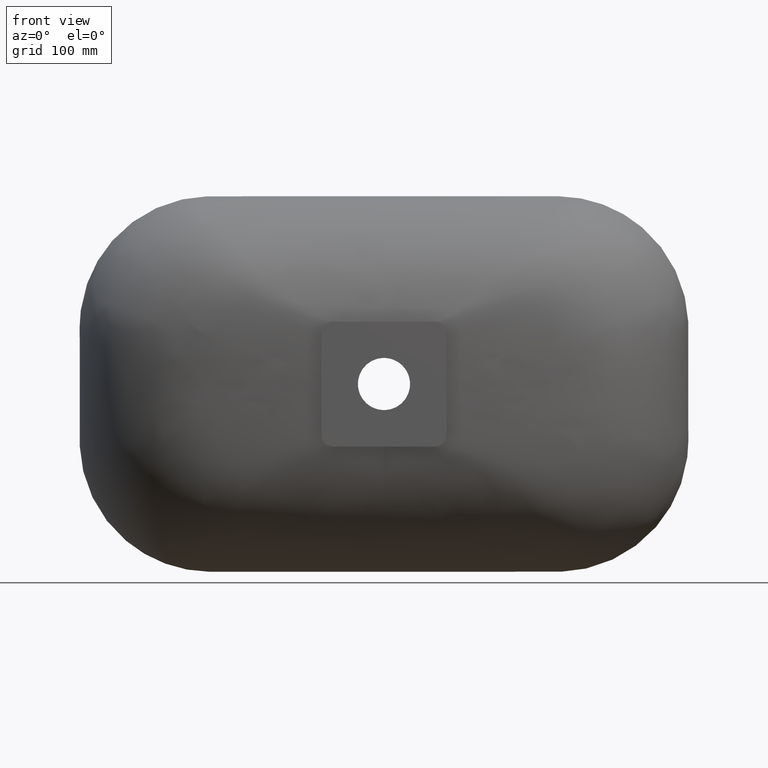
[diagram: clean part render]
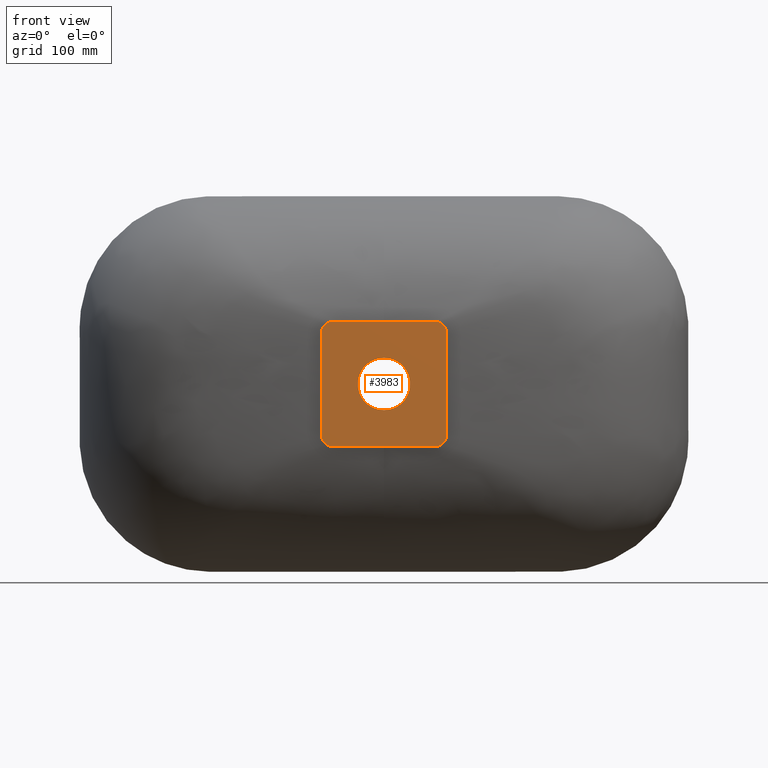
[diagram: same view with one face highlighted and labeled with its STEP entity id]
A machine part, front view. The second image highlights one B-rep face of the part: STEP entity #3983.
In plain terms, the highlighted planar face has unit normal (0, -1, 0).
Its self-contained STEP definition (entity closure, byte-faithful):
#71 = CARTESIAN_POINT ( 'NONE',  ( 3.727478630758845800E-012, -135.0001000000000000, 1.183025444455510400E-013 ) ) ;
#73 = EDGE_CURVE ( 'NONE', #4632, #2507, #5611, .T. ) ;
#74 = VERTEX_POINT ( 'NONE', #4558 ) ;
#190 = AXIS2_PLACEMENT_3D ( 'NONE', #3340, #8127, #4028 ) ;
#477 = VERTEX_POINT ( 'NONE', #2548 ) ;
#761 = DIRECTION ( 'NONE',  ( 1.000000000000000000, 2.896233977283470300E-014, 0.0000000000000000000 ) ) ;
#854 = CIRCLE ( 'NONE', #3876, 9.999999999999994700 ) ;
#891 = DIRECTION ( 'NONE',  ( -1.000000000000000000, -2.868076146948322700E-014, -1.541976423090496100E-016 ) ) ;
#922 = CARTESIAN_POINT ( 'NONE',  ( -54.99999999999998600, -135.0001000000016200, -45.00000000000001400 ) ) ;
#1128 = AXIS2_PLACEMENT_3D ( 'NONE', #2405, #7193, #3100 ) ;
#1167 = EDGE_CURVE ( 'NONE', #4435, #477, #2286, .T. ) ;
#1303 = ORIENTED_EDGE ( 'NONE', *, *, #4782, .T. ) ;
#1653 = ORIENTED_EDGE ( 'NONE', *, *, #5072, .T. ) ;
#1676 = VECTOR ( 'NONE', #4327, 1000.000000000000000 ) ;
#1738 = VERTEX_POINT ( 'NONE', #1981 ) ;
#1968 = EDGE_LOOP ( 'NONE', ( #5329, #3336, #2590, #1303, #2109, #1653, #4544, #4515 ) ) ;
#1981 = CARTESIAN_POINT ( 'NONE',  ( 44.99999999999997900, -135.0000999999986700, 54.99999999999997200 ) ) ;
#2067 = CARTESIAN_POINT ( 'NONE',  ( 3.727478630758845800E-012, -135.0001000000000000, 1.183025444455510400E-013 ) ) ;
#2109 = ORIENTED_EDGE ( 'NONE', *, *, #8791, .T. ) ;
#2125 = CARTESIAN_POINT ( 'NONE',  ( 2.816687638339104700E-015, -135.0000999999999700, 22.99999999999651800 ) ) ;
#2176 = DIRECTION ( 'NONE',  ( 2.867289048822921000E-014, -1.000000000000000000, 9.100188726435675100E-016 ) ) ;
#2192 = CARTESIAN_POINT ( 'NONE',  ( 44.99999999999999300, -135.0000999999987500, -54.99999999999997200 ) ) ;
#2243 = CIRCLE ( 'NONE', #1128, 9.999999999999980500 ) ;
#2286 = LINE ( 'NONE', #5944, #3041 ) ;
#2405 = CARTESIAN_POINT ( 'NONE',  ( -45.00000000000000000, -135.0001000000012500, 45.00000000000000000 ) ) ;
#2497 = AXIS2_PLACEMENT_3D ( 'NONE', #71, #4863, #761 ) ;
#2507 = VERTEX_POINT ( 'NONE', #2125 ) ;
#2548 = CARTESIAN_POINT ( 'NONE',  ( 54.99999999999997900, -135.0000999999984100, 45.00000000000000000 ) ) ;
#2590 = ORIENTED_EDGE ( 'NONE', *, *, #7411, .T. ) ;
#2629 = VECTOR ( 'NONE', #891, 1000.000000000000000 ) ;
#2651 = PLANE ( 'NONE',  #190 ) ;
#2770 = CARTESIAN_POINT ( 'NONE',  ( 3.202775275197307900E-025, -135.0001000000000300, -22.99999999999628400 ) ) ;
#2941 = AXIS2_PLACEMENT_3D ( 'NONE', #7982, #3883, #8674 ) ;
#3041 = VECTOR ( 'NONE', #5999, 1000.000000000000000 ) ;
#3100 = DIRECTION ( 'NONE',  ( -1.000000000000000000, -2.775557561562896700E-014, 0.0000000000000000000 ) ) ;
#3336 = ORIENTED_EDGE ( 'NONE', *, *, #1167, .T. ) ;
#3340 = CARTESIAN_POINT ( 'NONE',  ( 44.99999999999999300, -135.0000999999987500, -45.00000000000000000 ) ) ;
#3445 = DIRECTION ( 'NONE',  ( 1.000000000000000000, 2.896233977283470300E-014, 0.0000000000000000000 ) ) ;
#3550 = CARTESIAN_POINT ( 'NONE',  ( -45.00000000000000000, -135.0001000000013400, -44.99999999999999300 ) ) ;
#3639 = CARTESIAN_POINT ( 'NONE',  ( 44.99999999999999300, -135.0000999999987500, -54.99999999999997200 ) ) ;
#3876 = AXIS2_PLACEMENT_3D ( 'NONE', #3550, #8342, #4240 ) ;
#3880 = ORIENTED_EDGE ( 'NONE', *, *, #73, .F. ) ;
#3883 = DIRECTION ( 'NONE',  ( 2.867289048822921000E-014, -1.000000000000000000, 9.100188726435675100E-016 ) ) ;
#3983 = ADVANCED_FACE ( 'NONE', ( #7628, #5510 ), #2651, .T. ) ;
#4028 = DIRECTION ( 'NONE',  ( 1.000000000000000000, 2.867289048822921000E-014, 0.0000000000000000000 ) ) ;
#4240 = DIRECTION ( 'NONE',  ( -1.000000000000000000, -2.775557561562892900E-014, 0.0000000000000000000 ) ) ;
#4320 = VERTEX_POINT ( 'NONE', #6756 ) ;
#4327 = DIRECTION ( 'NONE',  ( 1.541976423090495400E-016, -9.251858538542971800E-016, -1.000000000000000000 ) ) ;
#4435 = VERTEX_POINT ( 'NONE', #6128 ) ;
#4515 = ORIENTED_EDGE ( 'NONE', *, *, #4952, .T. ) ;
#4544 = ORIENTED_EDGE ( 'NONE', *, *, #7466, .T. ) ;
#4558 = CARTESIAN_POINT ( 'NONE',  ( -44.99999999999996400, -135.0001000000013400, -54.99999999999998600 ) ) ;
#4632 = VERTEX_POINT ( 'NONE', #2770 ) ;
#4782 = EDGE_CURVE ( 'NONE', #1738, #5728, #6986, .T. ) ;
#4863 = DIRECTION ( 'NONE',  ( 2.867289048822921000E-014, -1.000000000000000000, 9.100188726435675100E-016 ) ) ;
#4952 = EDGE_CURVE ( 'NONE', #74, #8052, #6818, .T. ) ;
#4992 = VECTOR ( 'NONE', #8433, 1000.000000000000000 ) ;
#5072 = EDGE_CURVE ( 'NONE', #4320, #5077, #7885, .T. ) ;
#5077 = VERTEX_POINT ( 'NONE', #7046 ) ;
#5159 = DIRECTION ( 'NONE',  ( 2.867289048822921000E-014, -1.000000000000000000, 9.100188726435675100E-016 ) ) ;
#5329 = ORIENTED_EDGE ( 'NONE', *, *, #5586, .T. ) ;
#5510 = FACE_BOUND ( 'NONE', #8489, .T. ) ;
#5586 = EDGE_CURVE ( 'NONE', #8052, #4435, #7558, .T. ) ;
#5611 = CIRCLE ( 'NONE', #7359, 22.99999999999640100 ) ;
#5728 = VERTEX_POINT ( 'NONE', #6611 ) ;
#5892 = AXIS2_PLACEMENT_3D ( 'NONE', #6281, #2176, #6961 ) ;
#5944 = CARTESIAN_POINT ( 'NONE',  ( 55.00000000000001400, -135.0000999999985000, -45.00000000000000000 ) ) ;
#5999 = DIRECTION ( 'NONE',  ( -1.541976423090495400E-016, 9.251858538542971800E-016, 1.000000000000000000 ) ) ;
#6128 = CARTESIAN_POINT ( 'NONE',  ( 55.00000000000001400, -135.0000999999985000, -45.00000000000000000 ) ) ;
#6281 = CARTESIAN_POINT ( 'NONE',  ( 44.99999999999999300, -135.0000999999986700, 45.00000000000000000 ) ) ;
#6544 = CIRCLE ( 'NONE', #5892, 9.999999999999987600 ) ;
#6611 = CARTESIAN_POINT ( 'NONE',  ( -44.99999999999998600, -135.0001000000012500, 54.99999999999997900 ) ) ;
#6756 = CARTESIAN_POINT ( 'NONE',  ( -55.00000000000000000, -135.0001000000015400, 44.99999999999998600 ) ) ;
#6818 = LINE ( 'NONE', #3639, #4992 ) ;
#6961 = DIRECTION ( 'NONE',  ( 1.000000000000000000, 2.775557561562894800E-014, 0.0000000000000000000 ) ) ;
#6986 = LINE ( 'NONE', #8401, #2629 ) ;
#7046 = CARTESIAN_POINT ( 'NONE',  ( -54.99999999999999300, -135.0001000000016200, -45.00000000000001400 ) ) ;
#7193 = DIRECTION ( 'NONE',  ( 2.867289048822921000E-014, -1.000000000000000000, 9.100188726435675100E-016 ) ) ;
#7359 = AXIS2_PLACEMENT_3D ( 'NONE', #2067, #5159, #3445 ) ;
#7411 = EDGE_CURVE ( 'NONE', #477, #1738, #6544, .T. ) ;
#7466 = EDGE_CURVE ( 'NONE', #5077, #74, #854, .T. ) ;
#7491 = CIRCLE ( 'NONE', #2497, 22.99999999999640100 ) ;
#7558 = CIRCLE ( 'NONE', #2941, 10.00000000000000200 ) ;
#7628 = FACE_OUTER_BOUND ( 'NONE', #1968, .T. ) ;
#7749 = EDGE_CURVE ( 'NONE', #2507, #4632, #7491, .T. ) ;
#7885 = LINE ( 'NONE', #922, #1676 ) ;
#7982 = CARTESIAN_POINT ( 'NONE',  ( 44.99999999999999300, -135.0000999999987500, -45.00000000000000000 ) ) ;
#8052 = VERTEX_POINT ( 'NONE', #2192 ) ;
#8103 = ORIENTED_EDGE ( 'NONE', *, *, #7749, .F. ) ;
#8127 = DIRECTION ( 'NONE',  ( 2.867289048822921000E-014, -1.000000000000000000, 9.100188726435675100E-016 ) ) ;
#8342 = DIRECTION ( 'NONE',  ( 2.867289048822921000E-014, -1.000000000000000000, 9.100188726435675100E-016 ) ) ;
#8401 = CARTESIAN_POINT ( 'NONE',  ( 44.99999999999997900, -135.0000999999986700, 54.99999999999997200 ) ) ;
#8433 = DIRECTION ( 'NONE',  ( 1.000000000000000000, 2.868076146948322700E-014, 1.541976423090496100E-016 ) ) ;
#8489 = EDGE_LOOP ( 'NONE', ( #3880, #8103 ) ) ;
#8674 = DIRECTION ( 'NONE',  ( 1.000000000000000000, 2.775557561562890700E-014, 0.0000000000000000000 ) ) ;
#8791 = EDGE_CURVE ( 'NONE', #5728, #4320, #2243, .T. ) ;